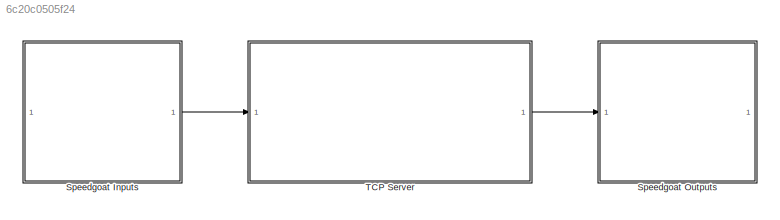
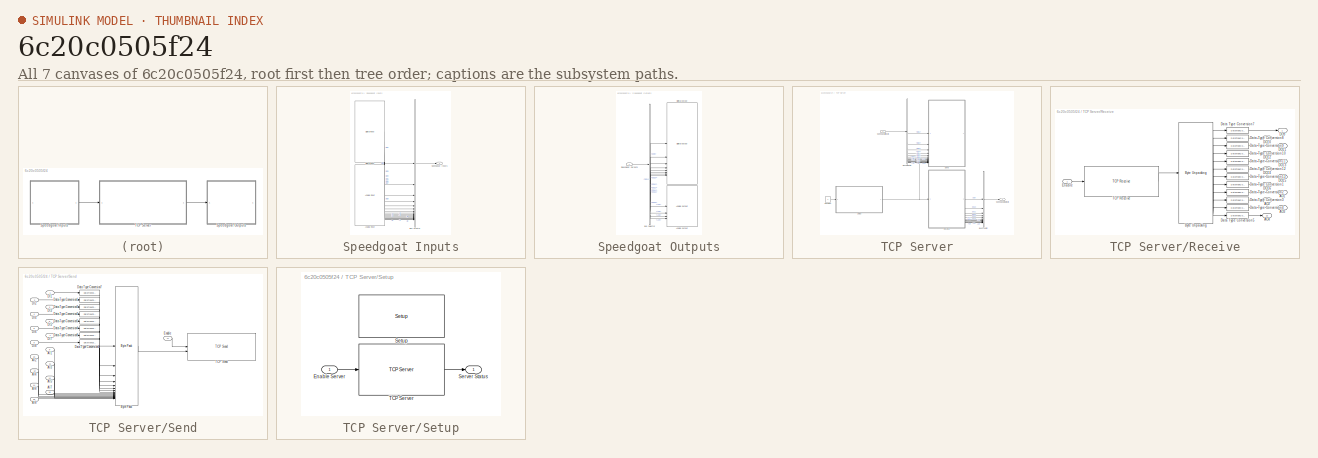
[diagram: thumbnail index - all 7 canvases of the model, root first then tree order]
MODEL slx_6c20c0505f24
KIND model
CONFIG AbsTol = auto
CONFIG EnableMultiTasking = off
CONFIG FixedStep = auto
CONFIG MaxStep = auto
CONFIG MinStep = auto
CONFIG RelTol = 1e-3
CONFIG SampleTimeConstraint = Unconstrained
CONFIG SolverName = FixedStepAuto
CONFIG StartTime = 0.0
CONFIG StopTime = inf
WORKSPACE source: mxarray member
WORKSPACE outputs: object (value not decoded)
BLOCK [SubSystem] Speedgoat Inputs
BLOCK [Reference] Speedgoat Inputs/Analog input   REF=speedgoatlib_IO191/Analog input 
  SourceBlock = speedgoatlib_IO191/Analog input
  SourceType = ad_IO191
BLOCK [BusCreator] Speedgoat Inputs/Bus Creator
  DisplayOption = bar
  InheritFromInputs = on
  Inputs = 16
BLOCK [Reference] Speedgoat Inputs/Digital input   REF=speedgoatlib_IO191/Digital input 
  SourceBlock = speedgoatlib_IO191/Digital input
  SourceType = di_IO191
BLOCK [Outport] Speedgoat Inputs/Speedgoat Inputs
BLOCK [SubSystem] Speedgoat Outputs
BLOCK [Reference] Speedgoat Outputs/Analog output   REF=speedgoatlib_IO191/Analog output 
  SourceBlock = speedgoatlib_IO191/Analog output
  SourceType = da_IO191
BLOCK [BusSelector] Speedgoat Outputs/Bus Selector
  OutputSignals = DO9,DO10,DO11,DO12,DO13,DO14,DO15,DO16,AO1,AO2,AO3,AO4
BLOCK [Reference] Speedgoat Outputs/Digital output   REF=speedgoatlib_IO191/Digital output 
  SourceBlock = speedgoatlib_IO191/Digital output
  SourceType = do_IO191
BLOCK [Inport] Speedgoat Outputs/Speedgoat Outputs
BLOCK [SubSystem] TCP Server
BLOCK [BusCreator] TCP Server/Bus Creator
  DisplayOption = bar
  InheritFromInputs = on
  Inputs = 12
BLOCK [BusSelector] TCP Server/Bus Selector
  OutputSignals = DIO1,DIO2,DIO3,DIO4,DIO5,DIO6,DIO7,DIO8,AI1,AI2,AI3,AI4,AI5,AI6,AI7,AI8
BLOCK [Constant] TCP Server/Constant
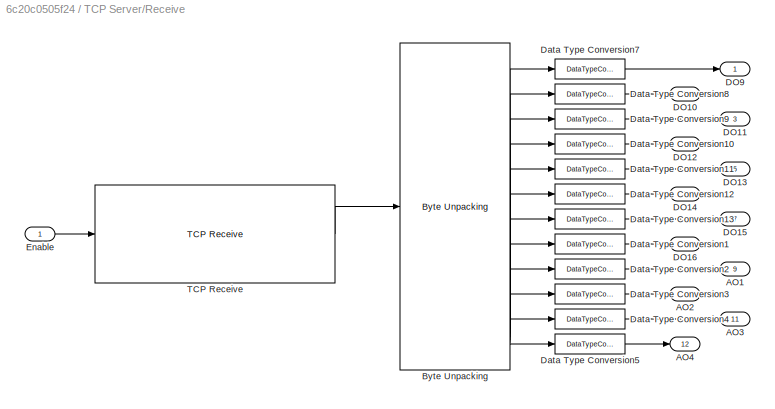
BLOCK [SubSystem] TCP Server/Receive
BLOCK [Outport] TCP Server/Receive/AO1
  Port = 9
BLOCK [Outport] TCP Server/Receive/AO2
  Port = 10
BLOCK [Outport] TCP Server/Receive/AO3
  Port = 11
BLOCK [Outport] TCP Server/Receive/AO4
  Port = 12
BLOCK [Reference] TCP Server/Receive/Byte Unpacking  REF=slrealtimeutilitieslib/Byte Unpacking
  SourceBlock = slrealtimeutilitieslib/Byte Unpacking
  SourceType = slreraltimebytepacking
BLOCK [Outport] TCP Server/Receive/DO10
  Port = 2
BLOCK [Outport] TCP Server/Receive/DO11
  Port = 3
BLOCK [Outport] TCP Server/Receive/DO12
  Port = 4
BLOCK [Outport] TCP Server/Receive/DO13
  Port = 5
BLOCK [Outport] TCP Server/Receive/DO14
  Port = 6
BLOCK [Outport] TCP Server/Receive/DO15
  Port = 7
BLOCK [Outport] TCP Server/Receive/DO16
  Port = 8
BLOCK [Outport] TCP Server/Receive/DO9
BLOCK [DataTypeConversion] TCP Server/Receive/Data Type Conversion1
  OutDataTypeStr = double
  RndMeth = Floor
  SaturateOnIntegerOverflow = off
BLOCK [DataTypeConversion] TCP Server/Receive/Data Type Conversion10
  OutDataTypeStr = double
  RndMeth = Floor
  SaturateOnIntegerOverflow = off
BLOCK [DataTypeConversion] TCP Server/Receive/Data Type Conversion11
  OutDataTypeStr = double
  RndMeth = Floor
  SaturateOnIntegerOverflow = off
BLOCK [DataTypeConversion] TCP Server/Receive/Data Type Conversion12
  OutDataTypeStr = double
  RndMeth = Floor
  SaturateOnIntegerOverflow = off
BLOCK [DataTypeConversion] TCP Server/Receive/Data Type Conversion13
  OutDataTypeStr = double
  RndMeth = Floor
  SaturateOnIntegerOverflow = off
BLOCK [DataTypeConversion] TCP Server/Receive/Data Type Conversion2
  OutDataTypeStr = double
  RndMeth = Floor
  SaturateOnIntegerOverflow = off
BLOCK [DataTypeConversion] TCP Server/Receive/Data Type Conversion3
  OutDataTypeStr = double
  RndMeth = Floor
  SaturateOnIntegerOverflow = off
BLOCK [DataTypeConversion] TCP Server/Receive/Data Type Conversion4
  OutDataTypeStr = double
  RndMeth = Floor
  SaturateOnIntegerOverflow = off
BLOCK [DataTypeConversion] TCP Server/Receive/Data Type Conversion5
  OutDataTypeStr = double
  RndMeth = Floor
  SaturateOnIntegerOverflow = off
BLOCK [DataTypeConversion] TCP Server/Receive/Data Type Conversion7
  OutDataTypeStr = double
  RndMeth = Floor
  SaturateOnIntegerOverflow = off
BLOCK [DataTypeConversion] TCP Server/Receive/Data Type Conversion8
  OutDataTypeStr = double
  RndMeth = Floor
  SaturateOnIntegerOverflow = off
BLOCK [DataTypeConversion] TCP Server/Receive/Data Type Conversion9
  OutDataTypeStr = double
  RndMeth = Floor
  SaturateOnIntegerOverflow = off
BLOCK [Inport] TCP Server/Receive/Enable
BLOCK [Reference] TCP Server/Receive/TCP Receive  REF=slrealtimeiplib/TCP Receive
  SourceBlock = slrealtimeiplib/TCP Receive
  SourceType = slrealtimetcpreceive
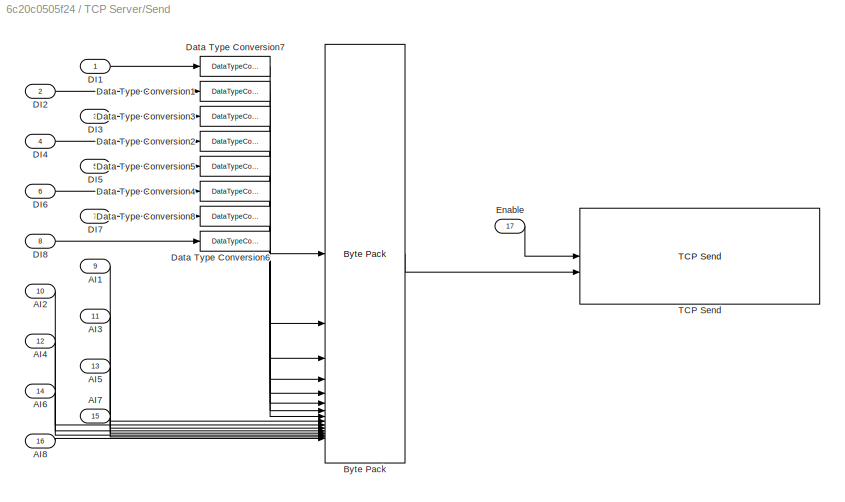
BLOCK [SubSystem] TCP Server/Send
BLOCK [Inport] TCP Server/Send/AI1
  Port = 9
BLOCK [Inport] TCP Server/Send/AI2
  Port = 10
BLOCK [Inport] TCP Server/Send/AI3
  Port = 11
BLOCK [Inport] TCP Server/Send/AI4
  Port = 12
BLOCK [Inport] TCP Server/Send/AI5
  Port = 13
BLOCK [Inport] TCP Server/Send/AI6
  Port = 14
BLOCK [Inport] TCP Server/Send/AI7
  Port = 15
BLOCK [Inport] TCP Server/Send/AI8
  Port = 16
BLOCK [Reference] TCP Server/Send/Byte Pack  REF=etargetslib/Byte Pack
  LibrarySourceBlock = embeddedtargetslib/Host Communication/Byte Pack
  SourceBlock = etargetslib/Byte Pack
  SourceType = Byte pack
BLOCK [Inport] TCP Server/Send/DI1
BLOCK [Inport] TCP Server/Send/DI2
  Port = 2
BLOCK [Inport] TCP Server/Send/DI3
  Port = 3
BLOCK [Inport] TCP Server/Send/DI4
  Port = 4
BLOCK [Inport] TCP Server/Send/DI5
  Port = 5
BLOCK [Inport] TCP Server/Send/DI6
  Port = 6
BLOCK [Inport] TCP Server/Send/DI7
  Port = 7
BLOCK [Inport] TCP Server/Send/DI8
  Port = 8
BLOCK [DataTypeConversion] TCP Server/Send/Data Type Conversion1
  OutDataTypeStr = uint8
  RndMeth = Floor
  SaturateOnIntegerOverflow = off
BLOCK [DataTypeConversion] TCP Server/Send/Data Type Conversion2
  OutDataTypeStr = uint8
  RndMeth = Floor
  SaturateOnIntegerOverflow = off
BLOCK [DataTypeConversion] TCP Server/Send/Data Type Conversion3
  OutDataTypeStr = uint8
  RndMeth = Floor
  SaturateOnIntegerOverflow = off
BLOCK [DataTypeConversion] TCP Server/Send/Data Type Conversion4
  OutDataTypeStr = uint8
  RndMeth = Floor
  SaturateOnIntegerOverflow = off
BLOCK [DataTypeConversion] TCP Server/Send/Data Type Conversion5
  OutDataTypeStr = uint8
  RndMeth = Floor
  SaturateOnIntegerOverflow = off
BLOCK [DataTypeConversion] TCP Server/Send/Data Type Conversion6
  OutDataTypeStr = uint8
  RndMeth = Floor
  SaturateOnIntegerOverflow = off
BLOCK [DataTypeConversion] TCP Server/Send/Data Type Conversion7
  OutDataTypeStr = uint8
  RndMeth = Floor
  SaturateOnIntegerOverflow = off
BLOCK [DataTypeConversion] TCP Server/Send/Data Type Conversion8
  OutDataTypeStr = uint8
  RndMeth = Floor
  SaturateOnIntegerOverflow = off
BLOCK [Inport] TCP Server/Send/Enable
  Port = 17
BLOCK [Reference] TCP Server/Send/TCP Send  REF=slrealtimeiplib/TCP Send
  SourceBlock = slrealtimeiplib/TCP Send
  SourceType = slrealtimetcpsend
BLOCK [SubSystem] TCP Server/Setup
BLOCK [Inport] TCP Server/Setup/Enable Server
BLOCK [Outport] TCP Server/Setup/Server Status
BLOCK [Reference] TCP Server/Setup/Setup   REF=speedgoatlib_IO191/Setup 
  SourceBlock = speedgoatlib_IO191/Setup
  SourceType = setup_IO191
BLOCK [Reference] TCP Server/Setup/TCP Server  REF=slrealtimeiplib/TCP Server
  Priority = -1
  SourceBlock = slrealtimeiplib/TCP Server
  SourceType = slrealtimetcpserver
BLOCK [Inport] TCP Server/Speedgoat Inputs
BLOCK [Outport] TCP Server/Speedgoat Outputs
LINE Speedgoat Inputs/Analog input :1 -> Speedgoat Inputs/Bus Creator:9
LINE Speedgoat Inputs/Analog input :2 -> Speedgoat Inputs/Bus Creator:10
LINE Speedgoat Inputs/Analog input :3 -> Speedgoat Inputs/Bus Creator:11
LINE Speedgoat Inputs/Analog input :4 -> Speedgoat Inputs/Bus Creator:12
LINE Speedgoat Inputs/Analog input :5 -> Speedgoat Inputs/Bus Creator:13
LINE Speedgoat Inputs/Analog input :6 -> Speedgoat Inputs/Bus Creator:14
LINE Speedgoat Inputs/Analog input :7 -> Speedgoat Inputs/Bus Creator:15
LINE Speedgoat Inputs/Analog input :8 -> Speedgoat Inputs/Bus Creator:16
LINE Speedgoat Inputs/Bus Creator:1 -> Speedgoat Inputs/Speedgoat Inputs:1
LINE Speedgoat Inputs/Digital input :1 -> Speedgoat Inputs/Bus Creator:1
LINE Speedgoat Inputs/Digital input :2 -> Speedgoat Inputs/Bus Creator:2
LINE Speedgoat Inputs/Digital input :3 -> Speedgoat Inputs/Bus Creator:3
LINE Speedgoat Inputs/Digital input :4 -> Speedgoat Inputs/Bus Creator:4
LINE Speedgoat Inputs/Digital input :5 -> Speedgoat Inputs/Bus Creator:5
LINE Speedgoat Inputs/Digital input :6 -> Speedgoat Inputs/Bus Creator:6
LINE Speedgoat Inputs/Digital input :7 -> Speedgoat Inputs/Bus Creator:7
LINE Speedgoat Inputs/Digital input :8 -> Speedgoat Inputs/Bus Creator:8
LINE Speedgoat Inputs:1 -> TCP Server:1
LINE Speedgoat Outputs/Bus Selector:1 -> Speedgoat Outputs/Digital output :1
LINE Speedgoat Outputs/Bus Selector:10 -> Speedgoat Outputs/Analog output :2
LINE Speedgoat Outputs/Bus Selector:11 -> Speedgoat Outputs/Analog output :3
LINE Speedgoat Outputs/Bus Selector:12 -> Speedgoat Outputs/Analog output :4
LINE Speedgoat Outputs/Bus Selector:2 -> Speedgoat Outputs/Digital output :2
LINE Speedgoat Outputs/Bus Selector:3 -> Speedgoat Outputs/Digital output :3
LINE Speedgoat Outputs/Bus Selector:4 -> Speedgoat Outputs/Digital output :4
LINE Speedgoat Outputs/Bus Selector:5 -> Speedgoat Outputs/Digital output :5
LINE Speedgoat Outputs/Bus Selector:6 -> Speedgoat Outputs/Digital output :6
LINE Speedgoat Outputs/Bus Selector:7 -> Speedgoat Outputs/Digital output :7
LINE Speedgoat Outputs/Bus Selector:8 -> Speedgoat Outputs/Digital output :8
LINE Speedgoat Outputs/Bus Selector:9 -> Speedgoat Outputs/Analog output :1
LINE Speedgoat Outputs/Speedgoat Outputs:1 -> Speedgoat Outputs/Bus Selector:1
LINE TCP Server/Bus Creator:1 -> TCP Server/Speedgoat Outputs:1
LINE TCP Server/Bus Selector:1 -> TCP Server/Send:1
LINE TCP Server/Bus Selector:10 -> TCP Server/Send:10
LINE TCP Server/Bus Selector:11 -> TCP Server/Send:11
LINE TCP Server/Bus Selector:12 -> TCP Server/Send:12
LINE TCP Server/Bus Selector:13 -> TCP Server/Send:13
LINE TCP Server/Bus Selector:14 -> TCP Server/Send:14
LINE TCP Server/Bus Selector:15 -> TCP Server/Send:15
LINE TCP Server/Bus Selector:16 -> TCP Server/Send:16
LINE TCP Server/Bus Selector:2 -> TCP Server/Send:2
LINE TCP Server/Bus Selector:3 -> TCP Server/Send:3
LINE TCP Server/Bus Selector:4 -> TCP Server/Send:4
LINE TCP Server/Bus Selector:5 -> TCP Server/Send:5
LINE TCP Server/Bus Selector:6 -> TCP Server/Send:6
LINE TCP Server/Bus Selector:7 -> TCP Server/Send:7
LINE TCP Server/Bus Selector:8 -> TCP Server/Send:8
LINE TCP Server/Bus Selector:9 -> TCP Server/Send:9
LINE TCP Server/Constant:1 -> TCP Server/Setup:1
LINE TCP Server/Receive/Byte Unpacking:1 -> TCP Server/Receive/Data Type Conversion7:1
LINE TCP Server/Receive/Byte Unpacking:10 -> TCP Server/Receive/Data Type Conversion3:1
LINE TCP Server/Receive/Byte Unpacking:11 -> TCP Server/Receive/Data Type Conversion4:1
LINE TCP Server/Receive/Byte Unpacking:12 -> TCP Server/Receive/Data Type Conversion5:1
LINE TCP Server/Receive/Byte Unpacking:2 -> TCP Server/Receive/Data Type Conversion8:1
LINE TCP Server/Receive/Byte Unpacking:3 -> TCP Server/Receive/Data Type Conversion9:1
LINE TCP Server/Receive/Byte Unpacking:4 -> TCP Server/Receive/Data Type Conversion10:1
LINE TCP Server/Receive/Byte Unpacking:5 -> TCP Server/Receive/Data Type Conversion11:1
LINE TCP Server/Receive/Byte Unpacking:6 -> TCP Server/Receive/Data Type Conversion12:1
LINE TCP Server/Receive/Byte Unpacking:7 -> TCP Server/Receive/Data Type Conversion13:1
LINE TCP Server/Receive/Byte Unpacking:8 -> TCP Server/Receive/Data Type Conversion1:1
LINE TCP Server/Receive/Byte Unpacking:9 -> TCP Server/Receive/Data Type Conversion2:1
LINE TCP Server/Receive/Data Type Conversion10:1 -> TCP Server/Receive/DO12:1
LINE TCP Server/Receive/Data Type Conversion11:1 -> TCP Server/Receive/DO13:1
LINE TCP Server/Receive/Data Type Conversion12:1 -> TCP Server/Receive/DO14:1
LINE TCP Server/Receive/Data Type Conversion13:1 -> TCP Server/Receive/DO15:1
LINE TCP Server/Receive/Data Type Conversion1:1 -> TCP Server/Receive/DO16:1
LINE TCP Server/Receive/Data Type Conversion2:1 -> TCP Server/Receive/AO1:1
LINE TCP Server/Receive/Data Type Conversion3:1 -> TCP Server/Receive/AO2:1
LINE TCP Server/Receive/Data Type Conversion4:1 -> TCP Server/Receive/AO3:1
LINE TCP Server/Receive/Data Type Conversion5:1 -> TCP Server/Receive/AO4:1
LINE TCP Server/Receive/Data Type Conversion7:1 -> TCP Server/Receive/DO9:1
LINE TCP Server/Receive/Data Type Conversion8:1 -> TCP Server/Receive/DO10:1
LINE TCP Server/Receive/Data Type Conversion9:1 -> TCP Server/Receive/DO11:1
LINE TCP Server/Receive/Enable:1 -> TCP Server/Receive/TCP Receive:1
LINE TCP Server/Receive/TCP Receive:1 -> TCP Server/Receive/Byte Unpacking:1
LINE TCP Server/Receive:1 -> TCP Server/Bus Creator:1
LINE TCP Server/Receive:10 -> TCP Server/Bus Creator:10
LINE TCP Server/Receive:11 -> TCP Server/Bus Creator:11
LINE TCP Server/Receive:12 -> TCP Server/Bus Creator:12
LINE TCP Server/Receive:2 -> TCP Server/Bus Creator:2
LINE TCP Server/Receive:3 -> TCP Server/Bus Creator:3
LINE TCP Server/Receive:4 -> TCP Server/Bus Creator:4
LINE TCP Server/Receive:5 -> TCP Server/Bus Creator:5
LINE TCP Server/Receive:6 -> TCP Server/Bus Creator:6
LINE TCP Server/Receive:7 -> TCP Server/Bus Creator:7
LINE TCP Server/Receive:8 -> TCP Server/Bus Creator:8
LINE TCP Server/Receive:9 -> TCP Server/Bus Creator:9
LINE TCP Server/Send/AI1:1 -> TCP Server/Send/Byte Pack:9
LINE TCP Server/Send/AI2:1 -> TCP Server/Send/Byte Pack:10
LINE TCP Server/Send/AI3:1 -> TCP Server/Send/Byte Pack:11
LINE TCP Server/Send/AI4:1 -> TCP Server/Send/Byte Pack:12
LINE TCP Server/Send/AI5:1 -> TCP Server/Send/Byte Pack:13
LINE TCP Server/Send/AI6:1 -> TCP Server/Send/Byte Pack:14
LINE TCP Server/Send/AI7:1 -> TCP Server/Send/Byte Pack:15
LINE TCP Server/Send/AI8:1 -> TCP Server/Send/Byte Pack:16
LINE TCP Server/Send/Byte Pack:1 -> TCP Server/Send/TCP Send:2
LINE TCP Server/Send/DI1:1 -> TCP Server/Send/Data Type Conversion7:1
LINE TCP Server/Send/DI2:1 -> TCP Server/Send/Data Type Conversion1:1
LINE TCP Server/Send/DI3:1 -> TCP Server/Send/Data Type Conversion3:1
LINE TCP Server/Send/DI4:1 -> TCP Server/Send/Data Type Conversion2:1
LINE TCP Server/Send/DI5:1 -> TCP Server/Send/Data Type Conversion5:1
LINE TCP Server/Send/DI6:1 -> TCP Server/Send/Data Type Conversion4:1
LINE TCP Server/Send/DI7:1 -> TCP Server/Send/Data Type Conversion8:1
LINE TCP Server/Send/DI8:1 -> TCP Server/Send/Data Type Conversion6:1
LINE TCP Server/Send/Data Type Conversion1:1 -> TCP Server/Send/Byte Pack:2
LINE TCP Server/Send/Data Type Conversion2:1 -> TCP Server/Send/Byte Pack:4
LINE TCP Server/Send/Data Type Conversion3:1 -> TCP Server/Send/Byte Pack:3
LINE TCP Server/Send/Data Type Conversion4:1 -> TCP Server/Send/Byte Pack:6
LINE TCP Server/Send/Data Type Conversion5:1 -> TCP Server/Send/Byte Pack:5
LINE TCP Server/Send/Data Type Conversion6:1 -> TCP Server/Send/Byte Pack:8
LINE TCP Server/Send/Data Type Conversion7:1 -> TCP Server/Send/Byte Pack:1
LINE TCP Server/Send/Data Type Conversion8:1 -> TCP Server/Send/Byte Pack:7
LINE TCP Server/Send/Enable:1 -> TCP Server/Send/TCP Send:1
LINE TCP Server/Setup/Enable Server:1 -> TCP Server/Setup/TCP Server:1
LINE TCP Server/Setup/TCP Server:1 -> TCP Server/Setup/Server Status:1
NET TCP Server/Setup:1 -> TCP Server/Receive:1, TCP Server/Send:17
LINE TCP Server/Speedgoat Inputs:1 -> TCP Server/Bus Selector:1
LINE TCP Server:1 -> Speedgoat Outputs:1
note: NET lines group one-source signal fan-out (src -> all destinations, sorted); 1:1 wires keep LINE
